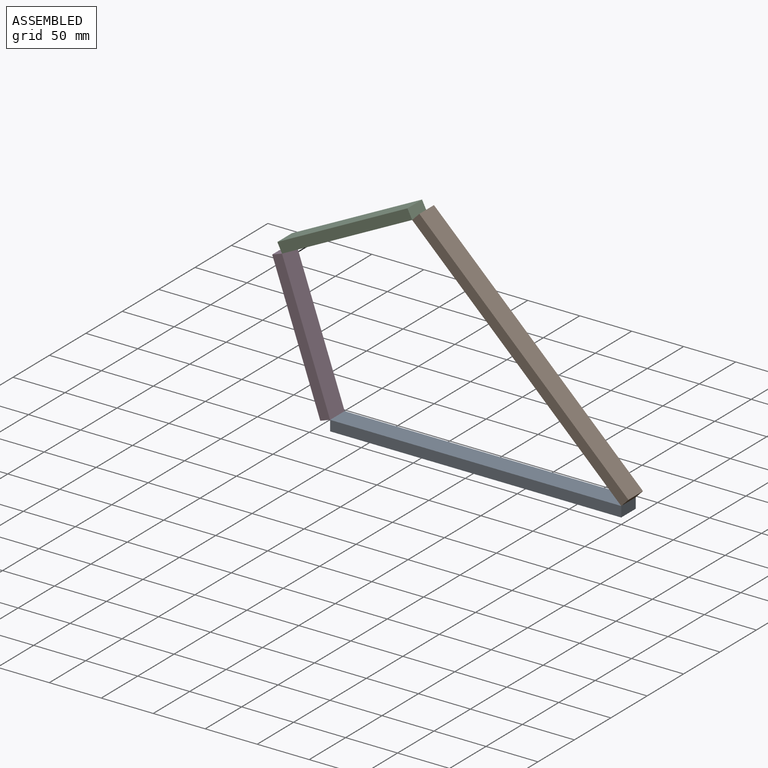
[diagram: assembled view]
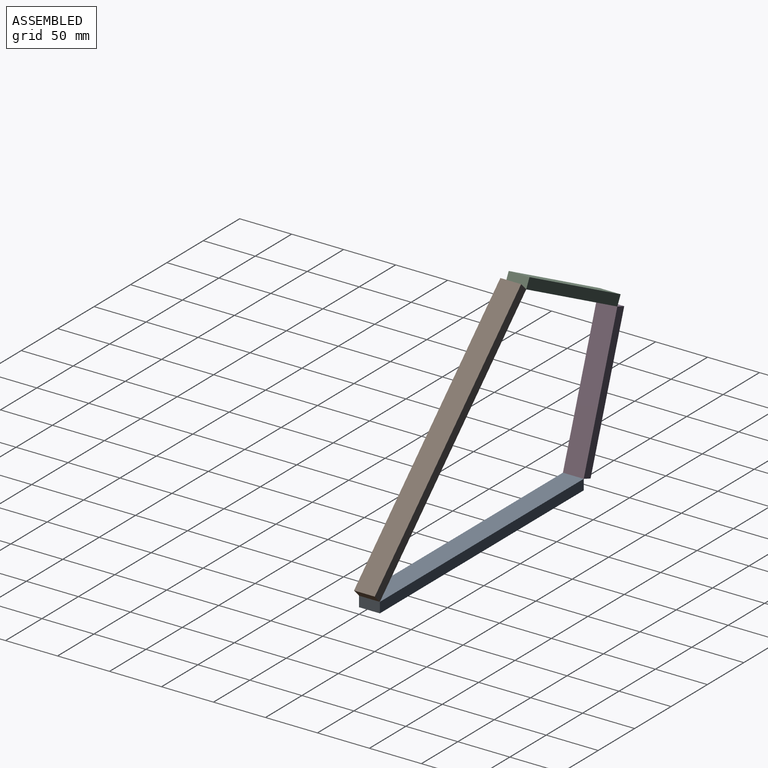
[diagram: assembled view, second angle]
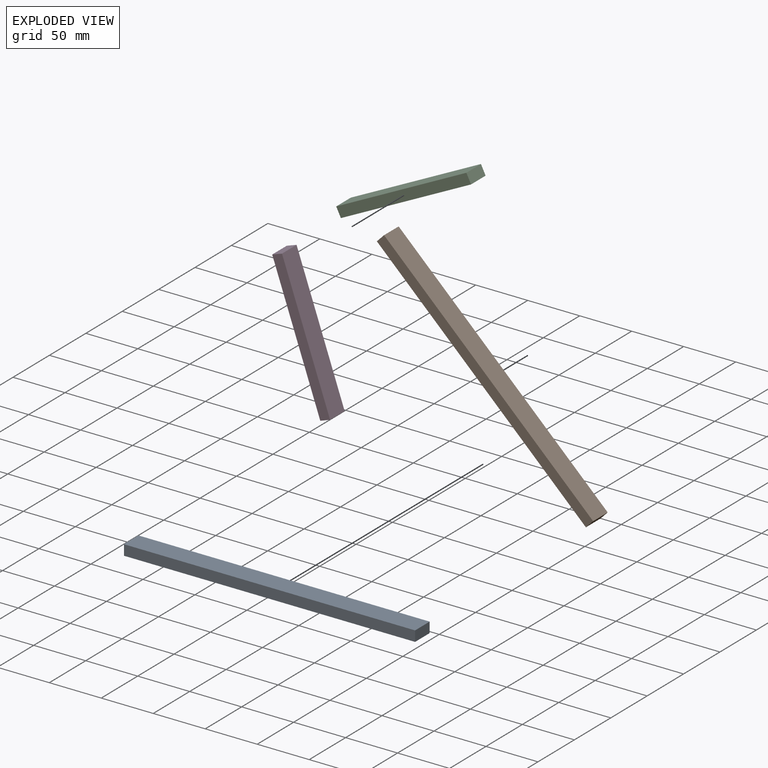
[diagram: exploded view]
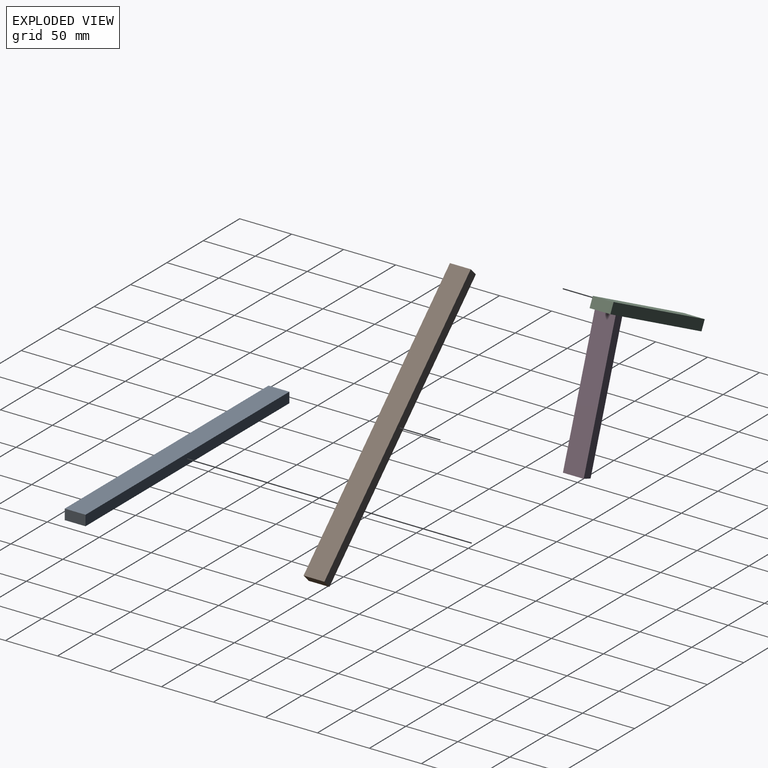
[diagram: exploded view, second angle]
ASSEMBLY  parts=4 mates=4
PART A: 6 faces, bbox 280x20x10 mm
  f0: plane 20x10mm, normal (-1,0,0), area 200mm2, adj f1,f3,f4,f5
  f1: plane 280x20mm, normal (0,0,-1), area 5600mm2, adj f0,f2,f4,f5
  f2: plane 20x10mm, normal (1,0,0), area 200mm2, adj f1,f3,f4,f5
  f3: plane 280x20mm, normal (0,0,1), area 5600mm2, adj f0,f2,f4,f5
  f4: plane 280x10mm, normal (0,-1,0), area 2800mm2, adj f0,f1,f2,f3
  f5: plane 280x10mm, normal (0,1,0), area 2800mm2, adj f0,f1,f2,f3
PART B: same geometry as A
PART C: 6 faces, bbox 140x20x10 mm
  f0: plane 20x10mm, normal (-1,0,0), area 200mm2, adj f1,f3,f4,f5
  f1: plane 140x20mm, normal (0,0,-1), area 2800mm2, adj f0,f2,f4,f5
  f2: plane 20x10mm, normal (1,0,0), area 200mm2, adj f1,f3,f4,f5
  f3: plane 140x20mm, normal (0,0,1), area 2800mm2, adj f0,f2,f4,f5
  f4: plane 140x10mm, normal (0,-1,0), area 1400mm2, adj f0,f1,f2,f3
  f5: plane 140x10mm, normal (0,1,0), area 1400mm2, adj f0,f1,f2,f3
PART D: same geometry as C
PLACE A t=(-140,20,5)mm
PLACE B rot(axis=(0,1,0),44.1deg) t=(-97.06,20,111.02)mm
PLACE C rot(axis=(0,-1,0),26.6deg) t=(-265.9,20,177.97)mm
PLACE D rot(axis=(0,-1,0),109.3deg) t=(-307.84,20,74.42)mm
MATE revolute D.f4 <-> A.f4  axis (0,-1,0) through (-280,0,10)mm
MATE revolute A.f4 <-> B.f4  axis (0,-1,0) through (0,0,10)mm
MATE revolute C.f4 <-> D.f4  axis (0,-1,0) through (-326.24,0,142.14)mm
MATE revolute B.f4 <-> C.f4  axis (0,-1,0) through (-201.07,0,204.86)mm
